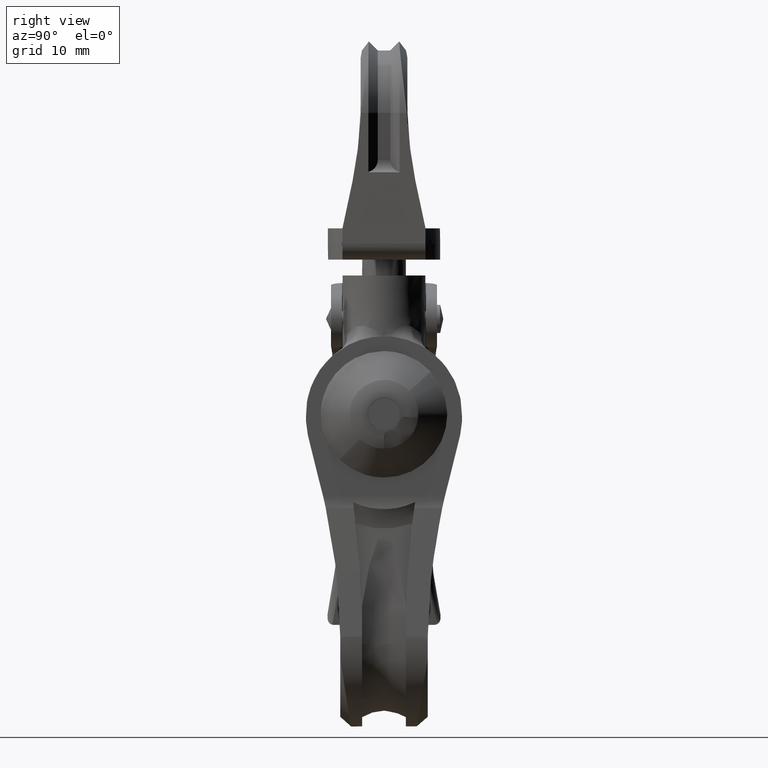
[diagram: clean part render]
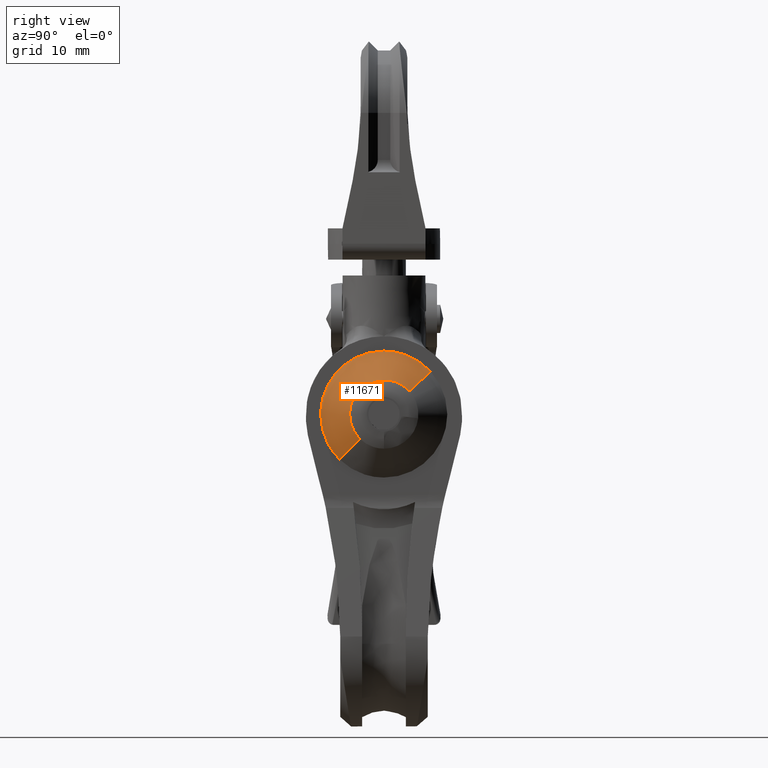
[diagram: same view with one face highlighted and labeled with its STEP entity id]
A machine part, right view. The second image highlights one B-rep face of the part: STEP entity #11671.
In plain terms, the highlighted face is a freeform B-spline surface patch.
Its self-contained STEP definition (entity closure, byte-faithful):
#11557=CARTESIAN_POINT('',(11.654664615179669,-3.762586455537607,-2.919767429751900));
#11558=CARTESIAN_POINT('',(11.645279370356535,-3.873237476847102,-2.812493590549293));
#11559=CARTESIAN_POINT('',(11.635357932303780,-3.977548709729853,-2.699091034687721));
#11560=CARTESIAN_POINT('',(11.288691720192288,-7.622300588628097,1.263321901346821));
#11561=CARTESIAN_POINT('',(10.971030663055990,-3.644751878898243,4.894204398965179));
#11562=CARTESIAN_POINT('',(10.653369605919691,0.332796830831610,8.525086896583538));
#11563=CARTESIAN_POINT('',(11.000035818031190,3.977548709729853,4.562673960548996));
#11564=CARTESIAN_POINT('',(8.493735692233109,-7.153202509823876,-6.693671897931653));
#11565=CARTESIAN_POINT('',(8.475893030644475,-7.363565560001963,-6.489729342753106));
#11566=CARTESIAN_POINT('',(8.457030990816643,-7.561875786671056,-6.274135240984212));
#11567=CARTESIAN_POINT('',(7.797970090063795,-14.491058304045268,1.258965325325841));
#11568=CARTESIAN_POINT('',(7.194052041127959,-6.929182517374215,8.161780211244050));
#11569=CARTESIAN_POINT('',(6.590133992192122,0.632693269296840,15.064595097162258));
#11570=CARTESIAN_POINT('',(7.249194892944969,7.561875786671056,7.531494530852205));
#11578=(BOUNDED_SURFACE()B_SPLINE_SURFACE(2,1,((#11557,#11564),(#11558,#11565),(#11559,#11566),(#11560,#11567),(#11561,#11568),(#11562,#11569),(#11563,#11570)),.UNSPECIFIED.,.F.,.F.,.U.)B_SPLINE_SURFACE_WITH_KNOTS((3,2,2,3),(2,2),(0.0,0.679740195757904,17.673245089705478,34.666749983653048),(0.0,5.977466337709564),.UNSPECIFIED.)GEOMETRIC_REPRESENTATION_ITEM()RATIONAL_B_SPLINE_SURFACE(((0.977505800795127,0.977505800795127),(0.988284271247462,0.988284271247462),(1.0,1.0),(0.707106781186548,0.707106781186548),(1.0,1.0),(0.707106781186548,0.707106781186548),(1.0,1.0)))REPRESENTATION_ITEM('')SURFACE());
#11579=CARTESIAN_POINT('',(11.235256132022590,-5.510598060901564,0.924575624880096));
#11580=VERTEX_POINT('',#11579);
#11581=CARTESIAN_POINT('',(11.579448880240570,-3.843268310206652,-3.009569824990065));
#11582=VERTEX_POINT('',#11581);
#11583=CARTESIAN_POINT('',(11.235256132022590,-5.510598060901564,0.924575624880096));
#11584=CARTESIAN_POINT('',(11.271232386557131,-5.510683929602687,0.513364700725055));
#11585=CARTESIAN_POINT('',(11.339180954555321,-5.422548831287184,-0.263291841291081));
#11586=CARTESIAN_POINT('',(11.461029683882060,-4.952327000946154,-1.656030725350516));
#11587=CARTESIAN_POINT('',(11.537666702734381,-4.336847596596993,-2.531996824484693));
#11588=CARTESIAN_POINT('',(11.579448880240570,-3.843268310206652,-3.009569824990065));
#11589=B_SPLINE_CURVE_WITH_KNOTS('',3,(#11583,#11584,#11585,#11586,#11587,#11588),.UNSPECIFIED.,.F.,.U.,(4,1,1,4),(0.000000036177520,1.238348316564807,2.339101397172191,4.403015893678486),.UNSPECIFIED.);
#11590=EDGE_CURVE('',#11580,#11582,#11589,.T.);
#11591=ORIENTED_EDGE('',*,*,#11590,.F.);
#11592=CARTESIAN_POINT('',(10.754975586542781,0.0,6.414207379713099));
#11593=VERTEX_POINT('',#11592);
#11594=CARTESIAN_POINT('',(10.754975586542781,0.0,6.414207379713099));
#11595=CARTESIAN_POINT('',(10.754967219457450,-0.405752433120793,6.414303015922876));
#11596=CARTESIAN_POINT('',(10.762389024768790,-1.172127504772622,6.329471393012948));
#11597=CARTESIAN_POINT('',(10.793346641605330,-2.247526892680761,5.975624213379411));
#11598=CARTESIAN_POINT('',(10.841999282018440,-3.232945838703456,5.419521988777074));
#11599=CARTESIAN_POINT('',(10.907467149488591,-4.082432535929203,4.671220839439221));
#11600=CARTESIAN_POINT('',(10.986750673952900,-4.757034211402707,3.765006008073640));
#11601=CARTESIAN_POINT('',(11.093823211524390,-5.338323420615140,2.541161303460388));
#11602=CARTESIAN_POINT('',(11.180241679167359,-5.510970884749609,1.553393698403985));
#11603=CARTESIAN_POINT('',(11.235256132022590,-5.510598060901564,0.924575624880096));
#11604=B_SPLINE_CURVE_WITH_KNOTS('',3,(#11594,#11595,#11596,#11597,#11598,#11599,#11600,#11601,#11602,#11603),.UNSPECIFIED.,.F.,.U.,(4,1,1,1,1,1,1,4),(0.000000079237040,1.217254239484282,2.299321492833227,3.381369012809974,4.598624267819979,5.680635702035891,6.762703665082047,8.656246207743944),.UNSPECIFIED.);
#11605=EDGE_CURVE('',#11593,#11580,#11604,.T.);
#11606=ORIENTED_EDGE('',*,*,#11605,.F.);
#11607=CARTESIAN_POINT('',(10.910783208240490,4.062839062576478,4.633318114535125));
#11608=VERTEX_POINT('',#11607);
#11609=CARTESIAN_POINT('',(10.910783208240490,4.062839062576478,4.633318114535125));
#11610=CARTESIAN_POINT('',(10.887847078449180,3.821737931513882,4.895479277666004));
#11611=CARTESIAN_POINT('',(10.841903574216960,3.234830712713639,5.420615934001517));
#11612=CARTESIAN_POINT('',(10.775686783304570,1.903006997647736,6.177477317444816));
#11613=CARTESIAN_POINT('',(10.754910058572030,0.737757460950546,6.414956367831101));
#11614=CARTESIAN_POINT('',(10.754975586542781,0.0,6.414207379713099));
#11615=B_SPLINE_CURVE_WITH_KNOTS('',3,(#11609,#11610,#11611,#11612,#11613,#11614),.UNSPECIFIED.,.F.,.U.,(4,1,1,4),(0.000000073088525,1.070739054822913,2.355588771252094,4.568490734441887),.UNSPECIFIED.);
#11616=EDGE_CURVE('',#11608,#11593,#11615,.T.);
#11617=ORIENTED_EDGE('',*,*,#11616,.F.);
#11618=CARTESIAN_POINT('',(7.340678481022431,7.474453900090437,7.459084910485456));
#11619=VERTEX_POINT('',#11618);
#11620=CARTESIAN_POINT('',(10.910783208240490,4.062839062576478,4.633318114535125));
#11621=CARTESIAN_POINT('',(7.340678481022431,7.474453900090437,7.459084910485456));
#11622=QUASI_UNIFORM_CURVE('',1,(#11620,#11621),.UNSPECIFIED.,.F.,.U.);
#11623=EDGE_CURVE('',#11608,#11619,#11622,.T.);
#11624=ORIENTED_EDGE('',*,*,#11623,.T.);
#11625=CARTESIAN_POINT('',(7.054037689721564,0.0,10.735407360780030));
#11626=VERTEX_POINT('',#11625);
#11627=CARTESIAN_POINT('',(7.340678481022431,7.474453900090437,7.459084910485456));
#11628=CARTESIAN_POINT('',(7.298480785586055,7.030908813601553,7.941406967080080));
#11629=CARTESIAN_POINT('',(7.231891439067202,6.180122632365668,8.702527046390777));
#11630=CARTESIAN_POINT('',(7.135845543328993,4.436499366327549,9.800337407809597));
#11631=CARTESIAN_POINT('',(7.070052439998613,2.407618396358594,10.552356892349559));
#11632=CARTESIAN_POINT('',(7.054031666666510,0.744151761829567,10.735475884667720));
#11633=CARTESIAN_POINT('',(7.054037689721564,0.0,10.735407360780030));
#11634=B_SPLINE_CURVE_WITH_KNOTS('',3,(#11627,#11628,#11629,#11630,#11631,#11632,#11633),.UNSPECIFIED.,.F.,.U.,(4,1,1,1,4),(0.000000071726907,1.969851157493330,3.414425876507377,6.172204599750710,8.404706956241331),.UNSPECIFIED.);
#11635=EDGE_CURVE('',#11619,#11626,#11634,.T.);
#11636=ORIENTED_EDGE('',*,*,#11635,.T.);
#11637=CARTESIAN_POINT('',(7.937615196168956,-10.137912562695639,0.636070248542865));
#11638=VERTEX_POINT('',#11637);
#11639=CARTESIAN_POINT('',(7.054037689721564,0.0,10.735407360780030));
#11640=CARTESIAN_POINT('',(7.054023643383169,-0.787936252180308,10.735567911162599));
#11641=CARTESIAN_POINT('',(7.068014877468106,-2.156381615851423,10.575647373791391));
#11642=CARTESIAN_POINT('',(7.124912593225192,-4.132553551450800,9.925303506780510));
#11643=CARTESIAN_POINT('',(7.199327075596404,-5.661554726351753,9.074742081194687));
#11644=CARTESIAN_POINT('',(7.297413815104023,-7.050033644730663,7.953605518414951));
#11645=CARTESIAN_POINT('',(7.424505259837846,-8.355806091591258,6.500943657873863));
#11646=CARTESIAN_POINT('',(7.580419024016317,-9.354739969888559,4.718841178594217));
#11647=CARTESIAN_POINT('',(7.760516769459628,-9.995238707366209,2.660314528566400));
#11648=CARTESIAN_POINT('',(7.872556017357356,-10.138040385841830,1.379700065133127));
#11649=CARTESIAN_POINT('',(7.937615196168956,-10.137912562695639,0.636070248542865));
#11650=B_SPLINE_CURVE_WITH_KNOTS('',3,(#11639,#11640,#11641,#11642,#11643,#11644,#11645,#11646,#11647,#11648,#11649),.UNSPECIFIED.,.F.,.U.,(4,1,1,1,1,1,1,1,4),(0.000000238865297,2.363787640057478,4.105589177185246,6.220628467559969,7.589120110124737,9.455283758094394,12.067936763375540,13.685300321450960,15.924697074451780),.UNSPECIFIED.);
#11651=EDGE_CURVE('',#11626,#11638,#11650,.T.);
#11652=ORIENTED_EDGE('',*,*,#11651,.T.);
#11653=CARTESIAN_POINT('',(8.570831301276435,-7.070505245510054,-6.601626176491275));
#11654=VERTEX_POINT('',#11653);
#11655=CARTESIAN_POINT('',(7.937615196168956,-10.137912562695639,0.636070248542865));
#11656=CARTESIAN_POINT('',(8.025867442148689,-10.138403394802300,-0.372657988273314));
#11657=CARTESIAN_POINT('',(8.172914698480597,-9.882863213938512,-2.053416567974860));
#11658=CARTESIAN_POINT('',(8.390795119174900,-8.827420484813365,-4.543802281831871));
#11659=CARTESIAN_POINT('',(8.509313200262998,-7.796525071235036,-5.898470751055606));
#11660=CARTESIAN_POINT('',(8.570831301276435,-7.070505245510054,-6.601626176491275));
#11661=B_SPLINE_CURVE_WITH_KNOTS('',3,(#11655,#11656,#11657,#11658,#11659,#11660),.UNSPECIFIED.,.F.,.U.,(4,1,1,4),(0.000000068238390,3.037564520786920,5.062561235583559,8.100125688217345),.UNSPECIFIED.);
#11662=EDGE_CURVE('',#11638,#11654,#11661,.T.);
#11663=ORIENTED_EDGE('',*,*,#11662,.T.);
#11664=CARTESIAN_POINT('',(11.579448880240570,-3.843268310206652,-3.009569824990065));
#11665=CARTESIAN_POINT('',(8.570831301276435,-7.070505245510054,-6.601626176491275));
#11666=QUASI_UNIFORM_CURVE('',1,(#11664,#11665),.UNSPECIFIED.,.F.,.U.);
#11667=EDGE_CURVE('',#11582,#11654,#11666,.T.);
#11668=ORIENTED_EDGE('',*,*,#11667,.F.);
#11669=EDGE_LOOP('',(#11591,#11606,#11617,#11624,#11636,#11652,#11663,#11668));
#11670=FACE_OUTER_BOUND('',#11669,.T.);
#11671=ADVANCED_FACE('',(#11670),#11578,.T.);